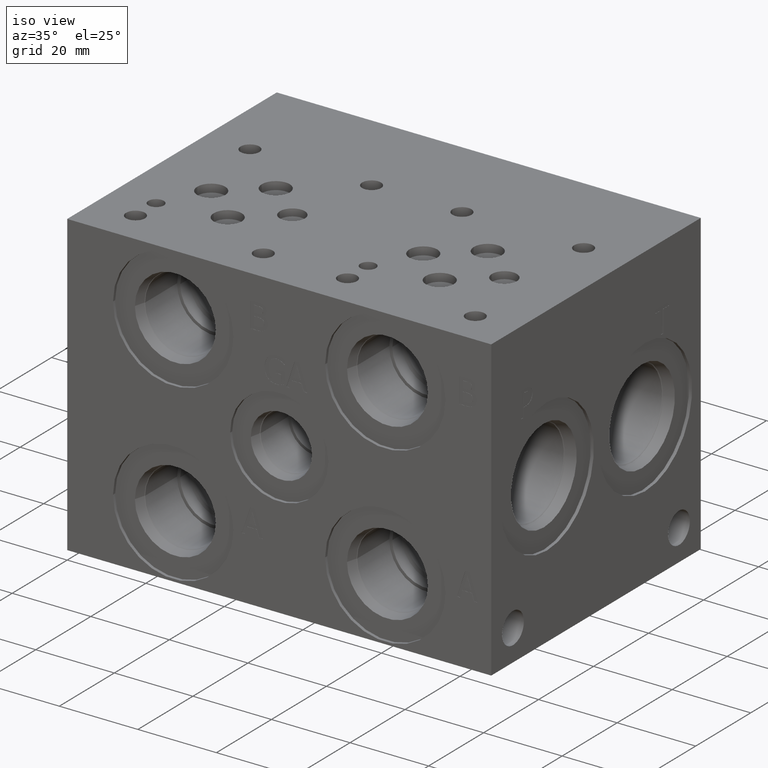
[diagram: clean part render]
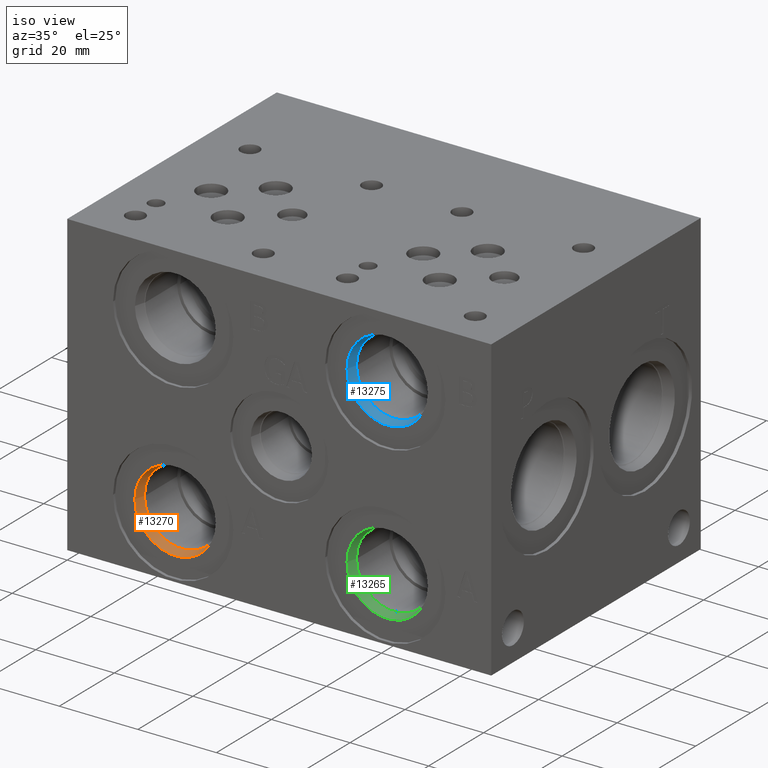
[diagram: same view with three faces highlighted in distinct colors, each labeled with its STEP entity id]
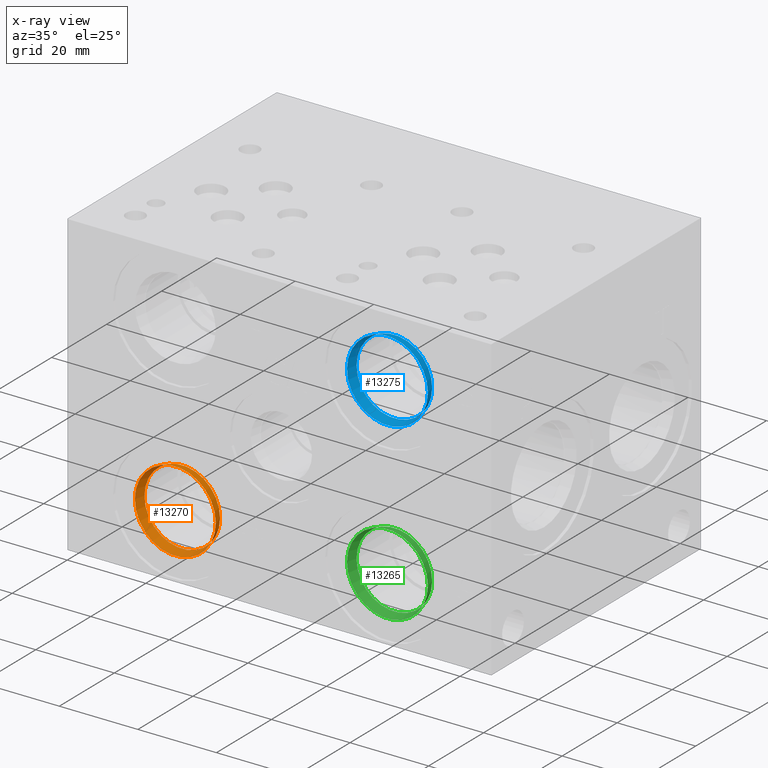
[diagram: x-ray of the same camera — body ghosted, the three highlighted faces saturated]
A machine part, iso view with three faces highlighted in distinct colors.
The next image is the same camera in x-ray (body ghosted, the three faces saturated) — at least one of them is partly hidden behind the body in this view.
Their STEP definitions:

[orange] entity #13270 — the highlighted conical surface has half-angle 15 deg.
#41=CONICAL_SURFACE('',#13952,9.96315,0.261799387657294);
#317=CIRCLE('',#13950,10.2997);
#318=CIRCLE('',#13951,10.2997);
#319=CIRCLE('',#13953,9.6266);
#320=CIRCLE('',#13954,9.6266);
#1718=FACE_OUTER_BOUND('',#2484,.T.);
#2484=EDGE_LOOP('',(#11293,#11294,#11295,#11296,#11297,#11298));
#3716=LINE('',#22687,#4892);
#4892=VECTOR('',#16446,9.96315);
#6064=VERTEX_POINT('',#22681);
#6065=VERTEX_POINT('',#22682);
#6066=VERTEX_POINT('',#22686);
#6067=VERTEX_POINT('',#22688);
#7862=EDGE_CURVE('',#6064,#6065,#317,.T.);
#7863=EDGE_CURVE('',#6065,#6064,#318,.T.);
#7864=EDGE_CURVE('',#6065,#6066,#3716,.T.);
#7865=EDGE_CURVE('',#6066,#6067,#319,.T.);
#7866=EDGE_CURVE('',#6067,#6066,#320,.T.);
#11293=ORIENTED_EDGE('',*,*,#7862,.F.);
#11294=ORIENTED_EDGE('',*,*,#7863,.F.);
#11295=ORIENTED_EDGE('',*,*,#7864,.T.);
#11296=ORIENTED_EDGE('',*,*,#7865,.T.);
#11297=ORIENTED_EDGE('',*,*,#7866,.T.);
#11298=ORIENTED_EDGE('',*,*,#7864,.F.);
#13270=ADVANCED_FACE('',(#1718),#41,.F.);
#13950=AXIS2_PLACEMENT_3D('',#22683,#16440,#16441);
#13951=AXIS2_PLACEMENT_3D('',#22684,#16442,#16443);
#13952=AXIS2_PLACEMENT_3D('',#22685,#16444,#16445);
#13953=AXIS2_PLACEMENT_3D('',#22689,#16447,#16448);
#13954=AXIS2_PLACEMENT_3D('',#22690,#16449,#16450);
#16440=DIRECTION('center_axis',(0.,1.,0.));
#16441=DIRECTION('ref_axis',(1.,0.,0.));
#16442=DIRECTION('center_axis',(0.,1.,0.));
#16443=DIRECTION('ref_axis',(1.,0.,0.));
#16444=DIRECTION('center_axis',(0.,-1.,0.));
#16445=DIRECTION('ref_axis',(1.,0.,0.));
#16446=DIRECTION('',(0.258819044965499,0.965925826325783,-3.16961914975373E-17));
#16447=DIRECTION('center_axis',(0.,1.,0.));
#16448=DIRECTION('ref_axis',(1.,0.,0.));
#16449=DIRECTION('center_axis',(0.,1.,0.));
#16450=DIRECTION('ref_axis',(1.,0.,0.));
#22681=CARTESIAN_POINT('',(37.2745,0.7874,15.875));
#22682=CARTESIAN_POINT('',(16.6751,0.7874,15.875));
#22683=CARTESIAN_POINT('Origin',(26.9748,0.7874,15.875));
#22684=CARTESIAN_POINT('Origin',(26.9748,0.7874,15.875));
#22685=CARTESIAN_POINT('Origin',(26.9748,2.0434217,15.875));
#22686=CARTESIAN_POINT('',(17.3482,3.2994434,15.875));
#22687=CARTESIAN_POINT('',(17.01165,2.0434217,15.875));
#22688=CARTESIAN_POINT('',(36.6014,3.2994434,15.875));
#22689=CARTESIAN_POINT('Origin',(26.9748,3.2994434,15.875));
#22690=CARTESIAN_POINT('Origin',(26.9748,3.2994434,15.875));

[blue] entity #13275 — the highlighted conical surface has half-angle 15 deg.
#43=CONICAL_SURFACE('',#13966,9.96315000000001,0.261799387657291);
#326=CIRCLE('',#13964,10.2997);
#327=CIRCLE('',#13965,10.2997);
#328=CIRCLE('',#13967,9.6266);
#329=CIRCLE('',#13968,9.6266);
#1723=FACE_OUTER_BOUND('',#2490,.T.);
#2490=EDGE_LOOP('',(#11320,#11321,#11322,#11323,#11324,#11325));
#3720=LINE('',#22714,#4896);
#4896=VECTOR('',#16478,9.96315000000001);
#6073=VERTEX_POINT('',#22708);
#6074=VERTEX_POINT('',#22709);
#6075=VERTEX_POINT('',#22713);
#6076=VERTEX_POINT('',#22715);
#7875=EDGE_CURVE('',#6073,#6074,#326,.T.);
#7876=EDGE_CURVE('',#6074,#6073,#327,.T.);
#7877=EDGE_CURVE('',#6074,#6075,#3720,.T.);
#7878=EDGE_CURVE('',#6075,#6076,#328,.T.);
#7879=EDGE_CURVE('',#6076,#6075,#329,.T.);
#11320=ORIENTED_EDGE('',*,*,#7875,.F.);
#11321=ORIENTED_EDGE('',*,*,#7876,.F.);
#11322=ORIENTED_EDGE('',*,*,#7877,.T.);
#11323=ORIENTED_EDGE('',*,*,#7878,.T.);
#11324=ORIENTED_EDGE('',*,*,#7879,.T.);
#11325=ORIENTED_EDGE('',*,*,#7877,.F.);
#13275=ADVANCED_FACE('',(#1723),#43,.F.);
#13964=AXIS2_PLACEMENT_3D('',#22710,#16472,#16473);
#13965=AXIS2_PLACEMENT_3D('',#22711,#16474,#16475);
#13966=AXIS2_PLACEMENT_3D('',#22712,#16476,#16477);
#13967=AXIS2_PLACEMENT_3D('',#22716,#16479,#16480);
#13968=AXIS2_PLACEMENT_3D('',#22717,#16481,#16482);
#16472=DIRECTION('center_axis',(0.,1.,0.));
#16473=DIRECTION('ref_axis',(1.,0.,0.));
#16474=DIRECTION('center_axis',(0.,1.,0.));
#16475=DIRECTION('ref_axis',(1.,0.,0.));
#16476=DIRECTION('center_axis',(0.,-1.,0.));
#16477=DIRECTION('ref_axis',(1.,0.,0.));
#16478=DIRECTION('',(0.258819044965496,0.965925826325784,-3.16961914975369E-17));
#16479=DIRECTION('center_axis',(0.,1.,0.));
#16480=DIRECTION('ref_axis',(1.,0.,0.));
#16481=DIRECTION('center_axis',(0.,1.,0.));
#16482=DIRECTION('ref_axis',(1.,0.,0.));
#22708=CARTESIAN_POINT('',(91.2749,0.7874,60.325));
#22709=CARTESIAN_POINT('',(70.6755,0.7874,60.325));
#22710=CARTESIAN_POINT('Origin',(80.9752,0.7874,60.325));
#22711=CARTESIAN_POINT('Origin',(80.9752,0.7874,60.325));
#22712=CARTESIAN_POINT('Origin',(80.9752,2.0434217,60.325));
#22713=CARTESIAN_POINT('',(71.3486,3.2994434,60.325));
#22714=CARTESIAN_POINT('',(71.01205,2.0434217,60.325));
#22715=CARTESIAN_POINT('',(90.6018,3.2994434,60.325));
#22716=CARTESIAN_POINT('Origin',(80.9752,3.2994434,60.325));
#22717=CARTESIAN_POINT('Origin',(80.9752,3.2994434,60.325));

[green] entity #13265 — the highlighted conical surface has half-angle 15 deg.
#39=CONICAL_SURFACE('',#13938,9.96315000000001,0.261799387657291);
#308=CIRCLE('',#13936,10.2997);
#309=CIRCLE('',#13937,10.2997);
#310=CIRCLE('',#13939,9.6266);
#311=CIRCLE('',#13940,9.6266);
#1713=FACE_OUTER_BOUND('',#2478,.T.);
#2478=EDGE_LOOP('',(#11266,#11267,#11268,#11269,#11270,#11271));
#3712=LINE('',#22660,#4888);
#4888=VECTOR('',#16414,9.96315000000001);
#6055=VERTEX_POINT('',#22654);
#6056=VERTEX_POINT('',#22655);
#6057=VERTEX_POINT('',#22659);
#6058=VERTEX_POINT('',#22661);
#7849=EDGE_CURVE('',#6055,#6056,#308,.T.);
#7850=EDGE_CURVE('',#6056,#6055,#309,.T.);
#7851=EDGE_CURVE('',#6056,#6057,#3712,.T.);
#7852=EDGE_CURVE('',#6057,#6058,#310,.T.);
#7853=EDGE_CURVE('',#6058,#6057,#311,.T.);
#11266=ORIENTED_EDGE('',*,*,#7849,.F.);
#11267=ORIENTED_EDGE('',*,*,#7850,.F.);
#11268=ORIENTED_EDGE('',*,*,#7851,.T.);
#11269=ORIENTED_EDGE('',*,*,#7852,.T.);
#11270=ORIENTED_EDGE('',*,*,#7853,.T.);
#11271=ORIENTED_EDGE('',*,*,#7851,.F.);
#13265=ADVANCED_FACE('',(#1713),#39,.F.);
#13936=AXIS2_PLACEMENT_3D('',#22656,#16408,#16409);
#13937=AXIS2_PLACEMENT_3D('',#22657,#16410,#16411);
#13938=AXIS2_PLACEMENT_3D('',#22658,#16412,#16413);
#13939=AXIS2_PLACEMENT_3D('',#22662,#16415,#16416);
#13940=AXIS2_PLACEMENT_3D('',#22663,#16417,#16418);
#16408=DIRECTION('center_axis',(0.,1.,0.));
#16409=DIRECTION('ref_axis',(1.,0.,0.));
#16410=DIRECTION('center_axis',(0.,1.,0.));
#16411=DIRECTION('ref_axis',(1.,0.,0.));
#16412=DIRECTION('center_axis',(0.,-1.,0.));
#16413=DIRECTION('ref_axis',(1.,0.,0.));
#16414=DIRECTION('',(0.258819044965496,0.965925826325784,-3.16961914975369E-17));
#16415=DIRECTION('center_axis',(0.,1.,0.));
#16416=DIRECTION('ref_axis',(1.,0.,0.));
#16417=DIRECTION('center_axis',(0.,1.,0.));
#16418=DIRECTION('ref_axis',(1.,0.,0.));
#22654=CARTESIAN_POINT('',(91.2749,0.7874,15.875));
#22655=CARTESIAN_POINT('',(70.6755,0.7874,15.875));
#22656=CARTESIAN_POINT('Origin',(80.9752,0.7874,15.875));
#22657=CARTESIAN_POINT('Origin',(80.9752,0.7874,15.875));
#22658=CARTESIAN_POINT('Origin',(80.9752,2.0434217,15.875));
#22659=CARTESIAN_POINT('',(71.3486,3.2994434,15.875));
#22660=CARTESIAN_POINT('',(71.01205,2.0434217,15.875));
#22661=CARTESIAN_POINT('',(90.6018,3.2994434,15.875));
#22662=CARTESIAN_POINT('Origin',(80.9752,3.2994434,15.875));
#22663=CARTESIAN_POINT('Origin',(80.9752,3.2994434,15.875));